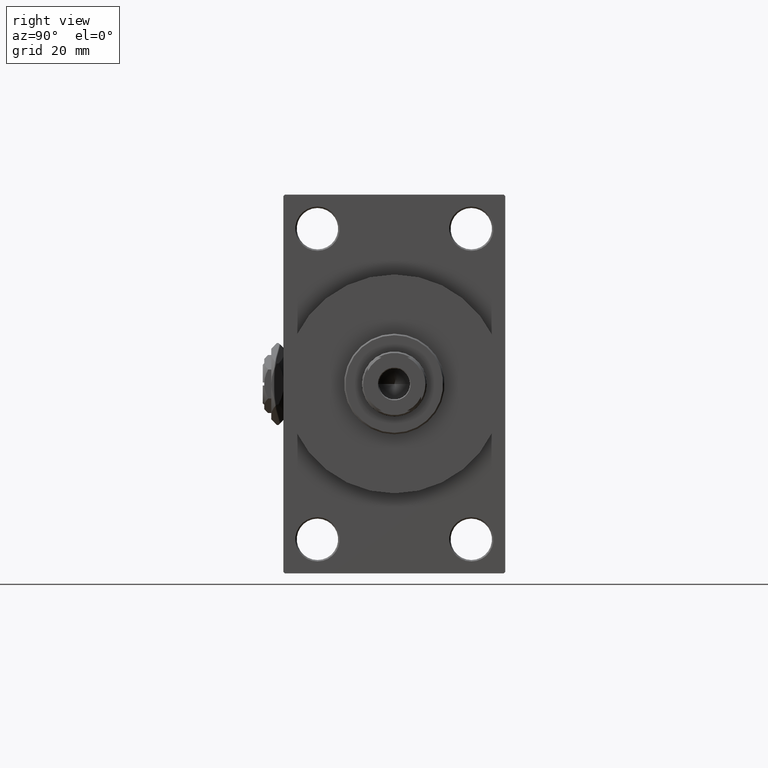
[diagram: clean part render]
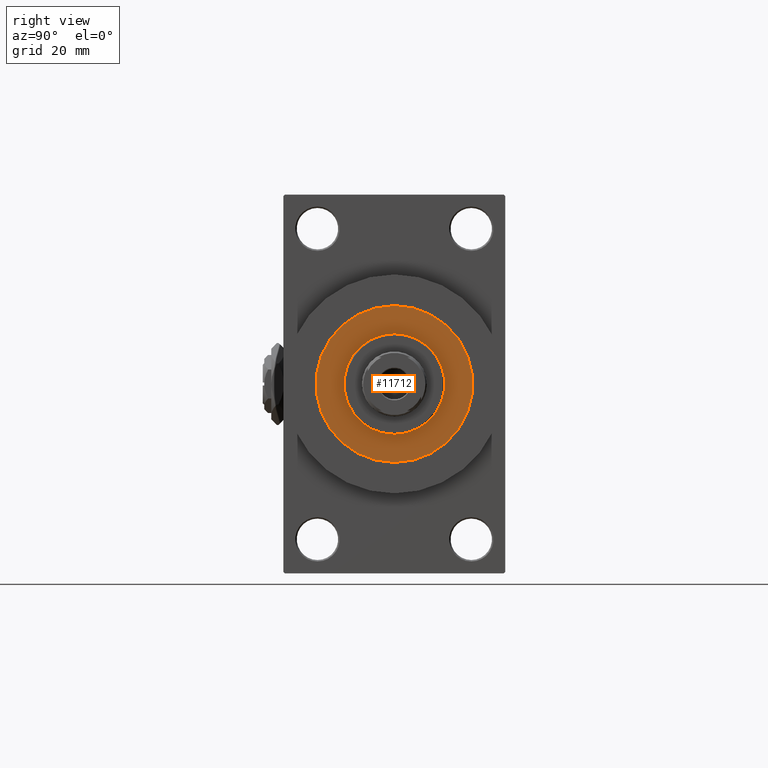
[diagram: same view with one face highlighted and labeled with its STEP entity id]
A machine part, right view. The second image highlights one B-rep face of the part: STEP entity #11712.
In plain terms, the highlighted planar face has unit normal (1, 0, 0).
Its self-contained STEP definition (entity closure, byte-faithful):
#114 = AXIS2_PLACEMENT_3D ( 'NONE', #16348, #4789, #34545 ) ;
#362 = CARTESIAN_POINT ( 'NONE',  ( 17.00000000000000000, 2.081899558550500280E-15, 43.25999999999999801 ) ) ;
#4789 = DIRECTION ( 'NONE',  ( 0.000000000000000000, 0.000000000000000000, 1.000000000000000000 ) ) ;
#4845 = CARTESIAN_POINT ( 'NONE',  ( -26.50000000000000355, 0.000000000000000000, 43.25999999999999801 ) ) ;
#5904 = CARTESIAN_POINT ( 'NONE',  ( 0.000000000000000000, 0.000000000000000000, 43.25999999999999801 ) ) ;
#6397 = CARTESIAN_POINT ( 'NONE',  ( 0.000000000000000000, 0.000000000000000000, 43.25999999999999801 ) ) ;
#7399 = AXIS2_PLACEMENT_3D ( 'NONE', #10155, #47084, #44357 ) ;
#9047 = CIRCLE ( 'NONE', #15435, 26.50000000000000355 ) ;
#10155 = CARTESIAN_POINT ( 'NONE',  ( 0.000000000000000000, 0.000000000000000000, 43.25999999999999801 ) ) ;
#10236 = VERTEX_POINT ( 'NONE', #18263 ) ;
#11712 = ADVANCED_FACE ( 'NONE', ( #25577, #21403 ), #36646, .T. ) ;
#12047 = EDGE_CURVE ( 'NONE', #38317, #10236, #16807, .T. ) ;
#13543 = DIRECTION ( 'NONE',  ( 1.000000000000000000, 0.000000000000000000, -0.000000000000000000 ) ) ;
#13598 = ORIENTED_EDGE ( 'NONE', *, *, #33794, .F. ) ;
#15435 = AXIS2_PLACEMENT_3D ( 'NONE', #5904, #20659, #35167 ) ;
#16348 = CARTESIAN_POINT ( 'NONE',  ( 0.000000000000000000, 0.000000000000000000, 43.25999999999999801 ) ) ;
#16807 = CIRCLE ( 'NONE', #20740, 17.00000000000000000 ) ;
#17698 = EDGE_CURVE ( 'NONE', #40059, #38193, #9047, .T. ) ;
#18263 = CARTESIAN_POINT ( 'NONE',  ( -17.00000000000000000, 0.000000000000000000, 43.25999999999999801 ) ) ;
#20659 = DIRECTION ( 'NONE',  ( 0.000000000000000000, 0.000000000000000000, 1.000000000000000000 ) ) ;
#20740 = AXIS2_PLACEMENT_3D ( 'NONE', #43752, #39807, #25269 ) ;
#21029 = CARTESIAN_POINT ( 'NONE',  ( 26.50000000000000355, 3.245314017740486554E-15, 43.25999999999999801 ) ) ;
#21403 = FACE_OUTER_BOUND ( 'NONE', #28978, .T. ) ;
#25269 = DIRECTION ( 'NONE',  ( 1.000000000000000000, 0.000000000000000000, 0.000000000000000000 ) ) ;
#25330 = DIRECTION ( 'NONE',  ( 0.000000000000000000, 0.000000000000000000, 1.000000000000000000 ) ) ;
#25577 = FACE_BOUND ( 'NONE', #32665, .T. ) ;
#28978 = EDGE_LOOP ( 'NONE', ( #35222, #30018 ) ) ;
#30018 = ORIENTED_EDGE ( 'NONE', *, *, #43730, .T. ) ;
#30903 = CIRCLE ( 'NONE', #7399, 26.50000000000000355 ) ;
#31760 = ORIENTED_EDGE ( 'NONE', *, *, #12047, .F. ) ;
#32665 = EDGE_LOOP ( 'NONE', ( #13598, #31760 ) ) ;
#33794 = EDGE_CURVE ( 'NONE', #10236, #38317, #41716, .T. ) ;
#34545 = DIRECTION ( 'NONE',  ( 1.000000000000000000, 0.000000000000000000, 0.000000000000000000 ) ) ;
#34880 = AXIS2_PLACEMENT_3D ( 'NONE', #6397, #25330, #13543 ) ;
#35167 = DIRECTION ( 'NONE',  ( 1.000000000000000000, 0.000000000000000000, 0.000000000000000000 ) ) ;
#35222 = ORIENTED_EDGE ( 'NONE', *, *, #17698, .T. ) ;
#36646 = PLANE ( 'NONE',  #34880 ) ;
#38193 = VERTEX_POINT ( 'NONE', #21029 ) ;
#38317 = VERTEX_POINT ( 'NONE', #362 ) ;
#39807 = DIRECTION ( 'NONE',  ( 0.000000000000000000, 0.000000000000000000, 1.000000000000000000 ) ) ;
#40059 = VERTEX_POINT ( 'NONE', #4845 ) ;
#41716 = CIRCLE ( 'NONE', #114, 17.00000000000000000 ) ;
#43730 = EDGE_CURVE ( 'NONE', #38193, #40059, #30903, .T. ) ;
#43752 = CARTESIAN_POINT ( 'NONE',  ( 0.000000000000000000, 0.000000000000000000, 43.25999999999999801 ) ) ;
#44357 = DIRECTION ( 'NONE',  ( 1.000000000000000000, 0.000000000000000000, 0.000000000000000000 ) ) ;
#47084 = DIRECTION ( 'NONE',  ( 0.000000000000000000, 0.000000000000000000, 1.000000000000000000 ) ) ;